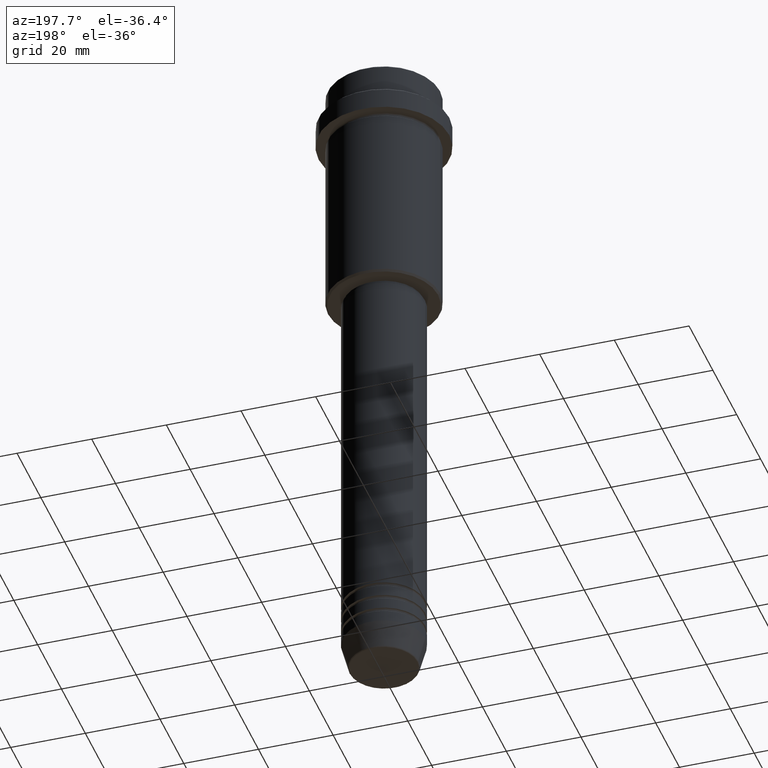
[diagram: clean part render]
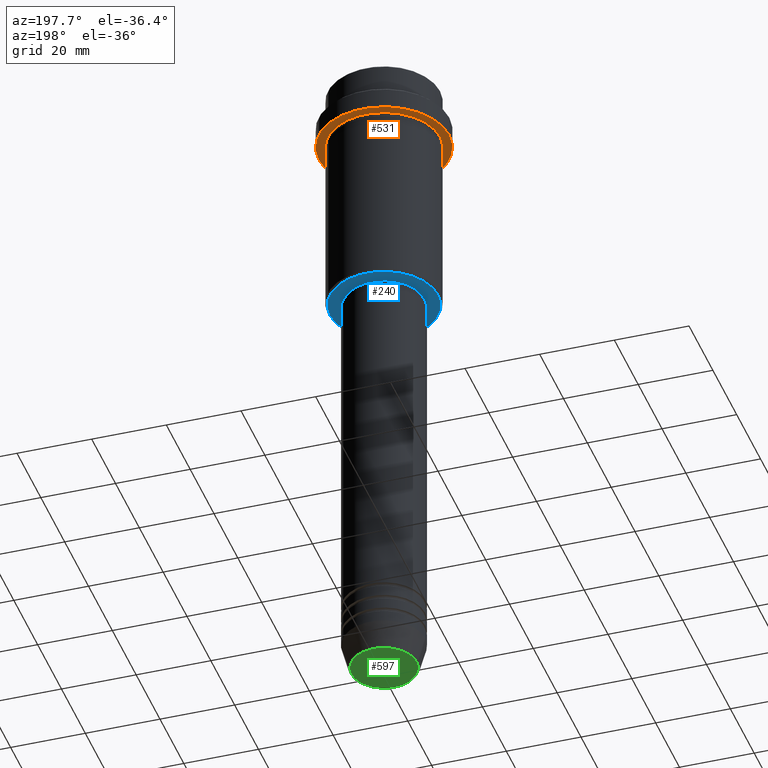
[diagram: same view with three faces highlighted in distinct colors, each labeled with its STEP entity id]
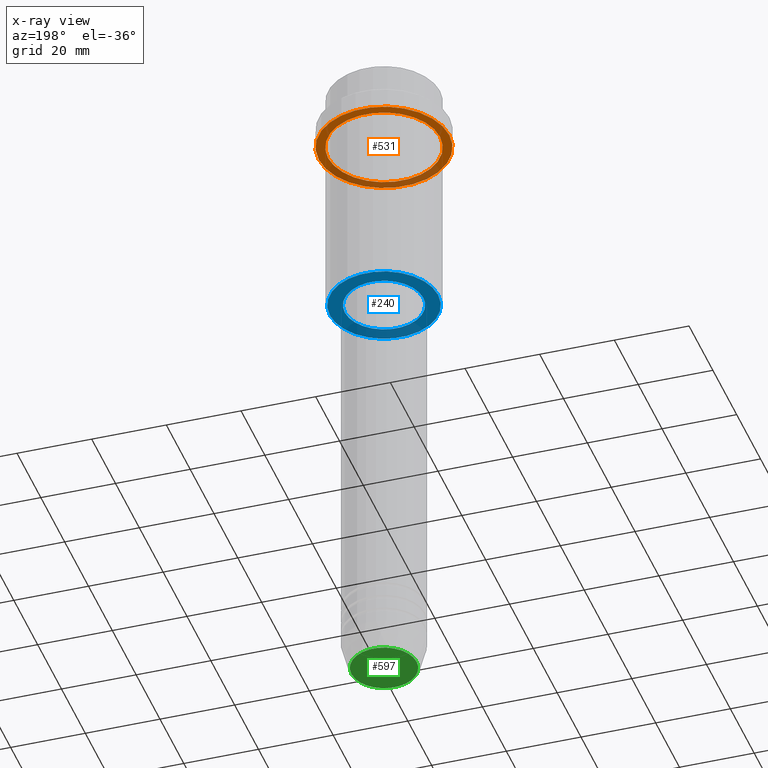
[diagram: x-ray of the same camera — body ghosted, the three highlighted faces saturated]
A machine part, auxiliary view with three faces highlighted in distinct colors.
The next image is the same camera in x-ray (body ghosted, the three faces saturated) — at least one of them is partly hidden behind the body in this view.
Their STEP definitions:

[orange] entity #531 — the highlighted planar face has unit normal (0, 0, -1).
#52 = EDGE_LOOP ( 'NONE', ( #1269, #447 ) ) ;
#61 = AXIS2_PLACEMENT_3D ( 'NONE', #916, #1130, #384 ) ;
#167 = DIRECTION ( 'NONE',  ( -0.000000000000000000, -0.000000000000000000, 1.000000000000000000 ) ) ;
#202 = DIRECTION ( 'NONE',  ( -0.000000000000000000, -0.000000000000000000, 1.000000000000000000 ) ) ;
#275 = DIRECTION ( 'NONE',  ( -0.000000000000000000, -0.000000000000000000, 1.000000000000000000 ) ) ;
#280 = CARTESIAN_POINT ( 'NONE',  ( 0.000000000000000000, 0.000000000000000000, -15.00000000000000000 ) ) ;
#283 = EDGE_CURVE ( 'NONE', #1412, #738, #955, .T. ) ;
#360 = FACE_BOUND ( 'NONE', #1282, .T. ) ;
#378 = AXIS2_PLACEMENT_3D ( 'NONE', #509, #167, #399 ) ;
#384 = DIRECTION ( 'NONE',  ( -1.000000000000000000, 0.000000000000000000, 0.000000000000000000 ) ) ;
#399 = DIRECTION ( 'NONE',  ( 1.000000000000000000, 0.000000000000000000, 0.000000000000000000 ) ) ;
#445 = VERTEX_POINT ( 'NONE', #890 ) ;
#447 = ORIENTED_EDGE ( 'NONE', *, *, #1103, .F. ) ;
#448 = FACE_OUTER_BOUND ( 'NONE', #52, .T. ) ;
#490 = CARTESIAN_POINT ( 'NONE',  ( -14.99999999999999467, 0.000000000000000000, -15.00000000000000000 ) ) ;
#509 = CARTESIAN_POINT ( 'NONE',  ( 0.000000000000000000, 0.000000000000000000, -15.00000000000000000 ) ) ;
#523 = CIRCLE ( 'NONE', #768, 17.50000000000000000 ) ;
#531 = ADVANCED_FACE ( 'NONE', ( #360, #448 ), #897, .T. ) ;
#628 = CIRCLE ( 'NONE', #378, 17.50000000000000000 ) ;
#705 = EDGE_CURVE ( 'NONE', #445, #1391, #628, .T. ) ;
#738 = VERTEX_POINT ( 'NONE', #490 ) ;
#768 = AXIS2_PLACEMENT_3D ( 'NONE', #280, #202, #970 ) ;
#777 = DIRECTION ( 'NONE',  ( 0.000000000000000000, 0.000000000000000000, -1.000000000000000000 ) ) ;
#873 = ORIENTED_EDGE ( 'NONE', *, *, #1009, .T. ) ;
#884 = ORIENTED_EDGE ( 'NONE', *, *, #283, .T. ) ;
#890 = CARTESIAN_POINT ( 'NONE',  ( 17.50000000000000000, 0.000000000000000000, -15.00000000000000000 ) ) ;
#897 = PLANE ( 'NONE',  #1390 ) ;
#916 = CARTESIAN_POINT ( 'NONE',  ( 0.000000000000000000, 0.000000000000000000, -15.00000000000000000 ) ) ;
#930 = AXIS2_PLACEMENT_3D ( 'NONE', #1244, #275, #1141 ) ;
#955 = CIRCLE ( 'NONE', #930, 14.99999999999999467 ) ;
#970 = DIRECTION ( 'NONE',  ( 1.000000000000000000, 0.000000000000000000, 0.000000000000000000 ) ) ;
#1009 = EDGE_CURVE ( 'NONE', #738, #1412, #1089, .T. ) ;
#1089 = CIRCLE ( 'NONE', #61, 14.99999999999999467 ) ;
#1103 = EDGE_CURVE ( 'NONE', #1391, #445, #523, .T. ) ;
#1130 = DIRECTION ( 'NONE',  ( -0.000000000000000000, -0.000000000000000000, 1.000000000000000000 ) ) ;
#1141 = DIRECTION ( 'NONE',  ( -1.000000000000000000, 0.000000000000000000, 0.000000000000000000 ) ) ;
#1151 = CARTESIAN_POINT ( 'NONE',  ( -17.50000000000000000, 2.143131898507868248E-15, -15.00000000000000000 ) ) ;
#1218 = CARTESIAN_POINT ( 'NONE',  ( 0.000000000000000000, 17.50000000000000000, -15.00000000000000000 ) ) ;
#1244 = CARTESIAN_POINT ( 'NONE',  ( 0.000000000000000000, 0.000000000000000000, -15.00000000000000000 ) ) ;
#1269 = ORIENTED_EDGE ( 'NONE', *, *, #705, .F. ) ;
#1282 = EDGE_LOOP ( 'NONE', ( #873, #884 ) ) ;
#1332 = DIRECTION ( 'NONE',  ( -1.000000000000000000, 0.000000000000000000, -0.000000000000000000 ) ) ;
#1365 = CARTESIAN_POINT ( 'NONE',  ( 14.99999999999999467, 1.836970198721029194E-15, -15.00000000000000000 ) ) ;
#1390 = AXIS2_PLACEMENT_3D ( 'NONE', #1218, #777, #1332 ) ;
#1391 = VERTEX_POINT ( 'NONE', #1151 ) ;
#1412 = VERTEX_POINT ( 'NONE', #1365 ) ;

[blue] entity #240 — the highlighted planar face has unit normal (0, 0, -1).
#15 = CIRCLE ( 'NONE', #108, 14.49999999999999645 ) ;
#21 = ORIENTED_EDGE ( 'NONE', *, *, #1374, .T. ) ;
#55 = EDGE_CURVE ( 'NONE', #143, #600, #15, .T. ) ;
#56 = CARTESIAN_POINT ( 'NONE',  ( 10.49999999999999289, 0.000000000000000000, -65.00000000000000000 ) ) ;
#69 = DIRECTION ( 'NONE',  ( -1.000000000000000000, 0.000000000000000000, 0.000000000000000000 ) ) ;
#108 = AXIS2_PLACEMENT_3D ( 'NONE', #464, #898, #239 ) ;
#143 = VERTEX_POINT ( 'NONE', #1005 ) ;
#153 = CARTESIAN_POINT ( 'NONE',  ( 0.000000000000000000, 0.000000000000000000, -65.00000000000000000 ) ) ;
#178 = DIRECTION ( 'NONE',  ( -1.000000000000000000, 0.000000000000000000, -0.000000000000000000 ) ) ;
#192 = ORIENTED_EDGE ( 'NONE', *, *, #1026, .T. ) ;
#193 = CARTESIAN_POINT ( 'NONE',  ( -10.49999999999999289, 1.285879139104720042E-15, -65.00000000000000000 ) ) ;
#222 = AXIS2_PLACEMENT_3D ( 'NONE', #706, #826, #713 ) ;
#239 = DIRECTION ( 'NONE',  ( -1.000000000000000000, 0.000000000000000000, 0.000000000000000000 ) ) ;
#240 = ADVANCED_FACE ( 'NONE', ( #297, #1168 ), #1240, .T. ) ;
#297 = FACE_OUTER_BOUND ( 'NONE', #760, .T. ) ;
#361 = AXIS2_PLACEMENT_3D ( 'NONE', #380, #701, #69 ) ;
#380 = CARTESIAN_POINT ( 'NONE',  ( 0.000000000000000000, 0.000000000000000000, -65.00000000000000000 ) ) ;
#464 = CARTESIAN_POINT ( 'NONE',  ( 0.000000000000000000, 0.000000000000000000, -65.00000000000000000 ) ) ;
#588 = DIRECTION ( 'NONE',  ( -0.000000000000000000, -0.000000000000000000, 1.000000000000000000 ) ) ;
#600 = VERTEX_POINT ( 'NONE', #1262 ) ;
#611 = CIRCLE ( 'NONE', #1109, 10.49999999999999289 ) ;
#676 = AXIS2_PLACEMENT_3D ( 'NONE', #1157, #1057, #178 ) ;
#685 = EDGE_CURVE ( 'NONE', #600, #143, #980, .T. ) ;
#701 = DIRECTION ( 'NONE',  ( 0.000000000000000000, 0.000000000000000000, -1.000000000000000000 ) ) ;
#706 = CARTESIAN_POINT ( 'NONE',  ( 0.000000000000000000, 0.000000000000000000, -65.00000000000000000 ) ) ;
#713 = DIRECTION ( 'NONE',  ( 1.000000000000000000, 0.000000000000000000, 0.000000000000000000 ) ) ;
#725 = EDGE_LOOP ( 'NONE', ( #21, #192 ) ) ;
#760 = EDGE_LOOP ( 'NONE', ( #815, #1105 ) ) ;
#815 = ORIENTED_EDGE ( 'NONE', *, *, #685, .T. ) ;
#826 = DIRECTION ( 'NONE',  ( -0.000000000000000000, -0.000000000000000000, 1.000000000000000000 ) ) ;
#842 = VERTEX_POINT ( 'NONE', #193 ) ;
#898 = DIRECTION ( 'NONE',  ( 0.000000000000000000, 0.000000000000000000, -1.000000000000000000 ) ) ;
#980 = CIRCLE ( 'NONE', #361, 14.49999999999999645 ) ;
#1005 = CARTESIAN_POINT ( 'NONE',  ( -14.49999999999999645, 1.806354028742345802E-15, -65.00000000000000000 ) ) ;
#1026 = EDGE_CURVE ( 'NONE', #842, #1153, #611, .T. ) ;
#1057 = DIRECTION ( 'NONE',  ( 0.000000000000000000, 0.000000000000000000, -1.000000000000000000 ) ) ;
#1105 = ORIENTED_EDGE ( 'NONE', *, *, #55, .T. ) ;
#1109 = AXIS2_PLACEMENT_3D ( 'NONE', #153, #588, #1351 ) ;
#1153 = VERTEX_POINT ( 'NONE', #56 ) ;
#1157 = CARTESIAN_POINT ( 'NONE',  ( 0.000000000000000000, 15.00000000000000000, -65.00000000000000000 ) ) ;
#1168 = FACE_BOUND ( 'NONE', #725, .T. ) ;
#1227 = CIRCLE ( 'NONE', #222, 10.49999999999999289 ) ;
#1240 = PLANE ( 'NONE',  #676 ) ;
#1262 = CARTESIAN_POINT ( 'NONE',  ( 14.49999999999999645, 0.000000000000000000, -65.00000000000000000 ) ) ;
#1351 = DIRECTION ( 'NONE',  ( 1.000000000000000000, 0.000000000000000000, 0.000000000000000000 ) ) ;
#1374 = EDGE_CURVE ( 'NONE', #1153, #842, #1227, .T. ) ;

[green] entity #597 — the highlighted planar face has unit normal (0, -0, 1).
#32 = DIRECTION ( 'NONE',  ( 0.000000000000000000, -0.000000000000000000, 1.000000000000000000 ) ) ;
#58 = CARTESIAN_POINT ( 'NONE',  ( -8.740692158992663607, 1.099999016768740442E-15, -180.0000000000000000 ) ) ;
#88 = DIRECTION ( 'NONE',  ( 0.000000000000000000, 0.000000000000000000, -1.000000000000000000 ) ) ;
#162 = DIRECTION ( 'NONE',  ( 0.000000000000000000, 0.000000000000000000, -1.000000000000000000 ) ) ;
#252 = ORIENTED_EDGE ( 'NONE', *, *, #1047, .T. ) ;
#285 = VERTEX_POINT ( 'NONE', #58 ) ;
#314 = CIRCLE ( 'NONE', #1272, 8.740692158992663607 ) ;
#357 = AXIS2_PLACEMENT_3D ( 'NONE', #394, #162, #595 ) ;
#394 = CARTESIAN_POINT ( 'NONE',  ( 0.000000000000000000, 0.000000000000000000, -180.0000000000000000 ) ) ;
#534 = CARTESIAN_POINT ( 'NONE',  ( 0.000000000000000000, 0.000000000000000000, -180.0000000000000000 ) ) ;
#542 = AXIS2_PLACEMENT_3D ( 'NONE', #1154, #32, #1368 ) ;
#583 = CIRCLE ( 'NONE', #357, 8.740692158992663607 ) ;
#595 = DIRECTION ( 'NONE',  ( 1.000000000000000000, 0.000000000000000000, 0.000000000000000000 ) ) ;
#597 = ADVANCED_FACE ( 'NONE', ( #1323 ), #716, .F. ) ;
#647 = CARTESIAN_POINT ( 'NONE',  ( 8.740692158992663607, 0.000000000000000000, -180.0000000000000000 ) ) ;
#716 = PLANE ( 'NONE',  #542 ) ;
#798 = VERTEX_POINT ( 'NONE', #647 ) ;
#874 = EDGE_CURVE ( 'NONE', #798, #285, #314, .T. ) ;
#929 = ORIENTED_EDGE ( 'NONE', *, *, #874, .T. ) ;
#1047 = EDGE_CURVE ( 'NONE', #285, #798, #583, .T. ) ;
#1154 = CARTESIAN_POINT ( 'NONE',  ( 0.000000000000000000, 0.000000000000000000, -180.0000000000000000 ) ) ;
#1272 = AXIS2_PLACEMENT_3D ( 'NONE', #534, #88, #1413 ) ;
#1323 = FACE_OUTER_BOUND ( 'NONE', #1406, .T. ) ;
#1368 = DIRECTION ( 'NONE',  ( 1.000000000000000000, 0.000000000000000000, 0.000000000000000000 ) ) ;
#1406 = EDGE_LOOP ( 'NONE', ( #929, #252 ) ) ;
#1413 = DIRECTION ( 'NONE',  ( 1.000000000000000000, 0.000000000000000000, 0.000000000000000000 ) ) ;